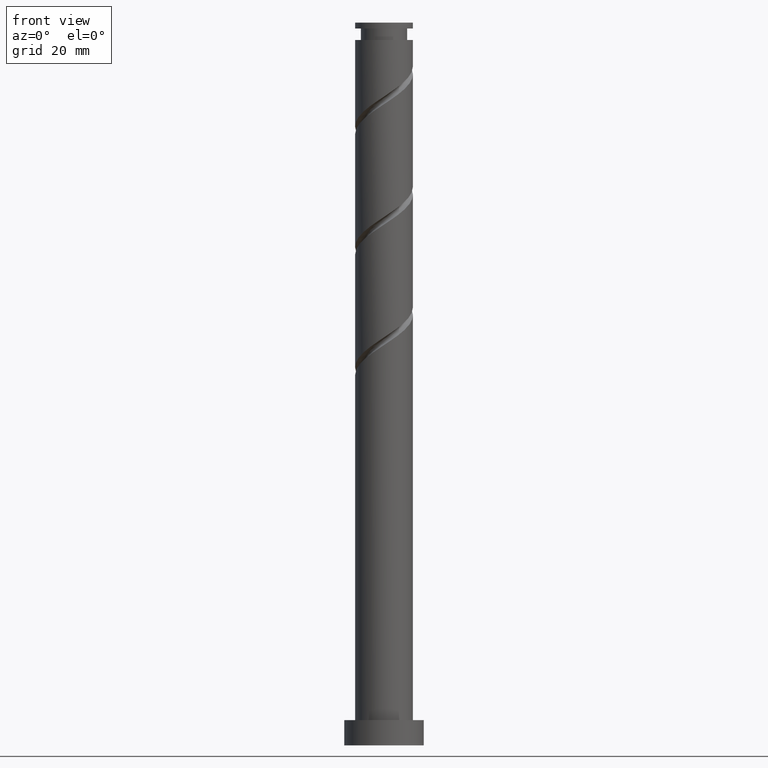
[diagram: clean part render]
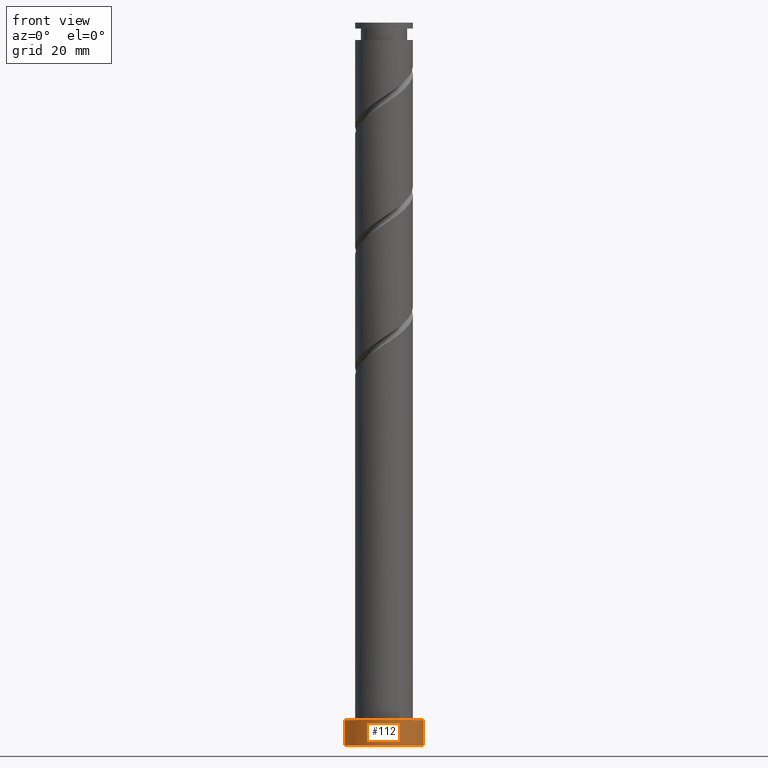
[diagram: same view with one face highlighted and labeled with its STEP entity id]
A machine part, front view. The second image highlights one B-rep face of the part: STEP entity #112.
In plain terms, the highlighted cylindrical surface (partial cylindrical patch) has radius 11 mm, axis along (-0, -0, -1).
Its self-contained STEP definition (entity closure, byte-faithful):
#23 = DIRECTION ( 'NONE',  ( 1.000000000000000000, 0.000000000000000000, 0.000000000000000000 ) ) ;
#36 = EDGE_CURVE ( 'NONE', #113, #643, #524, .T. ) ;
#39 = AXIS2_PLACEMENT_3D ( 'NONE', #546, #1096, #1077 ) ;
#54 = LINE ( 'NONE', #1675, #729 ) ;
#60 = CARTESIAN_POINT ( 'NONE',  ( -11.00000000000000000, 0.000000000000000000, 7.000000000000000000 ) ) ;
#112 = ADVANCED_FACE ( 'NONE', ( #698 ), #966, .T. ) ;
#113 = VERTEX_POINT ( 'NONE', #395 ) ;
#182 = VECTOR ( 'NONE', #357, 1000.000000000000000 ) ;
#253 = VERTEX_POINT ( 'NONE', #60 ) ;
#267 = CARTESIAN_POINT ( 'NONE',  ( 0.000000000000000000, 0.000000000000000000, 0.000000000000000000 ) ) ;
#278 = DIRECTION ( 'NONE',  ( 1.000000000000000000, 0.000000000000000000, 0.000000000000000000 ) ) ;
#297 = EDGE_LOOP ( 'NONE', ( #1285, #1597, #1088, #1497 ) ) ;
#348 = LINE ( 'NONE', #1658, #182 ) ;
#357 = DIRECTION ( 'NONE',  ( -0.000000000000000000, -0.000000000000000000, -1.000000000000000000 ) ) ;
#395 = CARTESIAN_POINT ( 'NONE',  ( -11.00000000000000000, 0.000000000000000000, 0.000000000000000000 ) ) ;
#454 = VERTEX_POINT ( 'NONE', #654 ) ;
#524 = CIRCLE ( 'NONE', #838, 11.00000000000000000 ) ;
#546 = CARTESIAN_POINT ( 'NONE',  ( 0.000000000000000000, 0.000000000000000000, 7.000000000000000000 ) ) ;
#643 = VERTEX_POINT ( 'NONE', #1494 ) ;
#654 = CARTESIAN_POINT ( 'NONE',  ( 11.00000000000000000, 1.347111479062088405E-15, 7.000000000000000000 ) ) ;
#698 = FACE_OUTER_BOUND ( 'NONE', #297, .T. ) ;
#703 = CARTESIAN_POINT ( 'NONE',  ( 0.000000000000000000, 0.000000000000000000, 7.000000000000000000 ) ) ;
#729 = VECTOR ( 'NONE', #1016, 1000.000000000000000 ) ;
#838 = AXIS2_PLACEMENT_3D ( 'NONE', #267, #1498, #278 ) ;
#857 = EDGE_CURVE ( 'NONE', #454, #643, #348, .T. ) ;
#898 = AXIS2_PLACEMENT_3D ( 'NONE', #703, #1247, #23 ) ;
#966 = CYLINDRICAL_SURFACE ( 'NONE', #39, 11.00000000000000000 ) ;
#1016 = DIRECTION ( 'NONE',  ( -0.000000000000000000, -0.000000000000000000, -1.000000000000000000 ) ) ;
#1077 = DIRECTION ( 'NONE',  ( -1.000000000000000000, 0.000000000000000000, 0.000000000000000000 ) ) ;
#1088 = ORIENTED_EDGE ( 'NONE', *, *, #1513, .T. ) ;
#1096 = DIRECTION ( 'NONE',  ( -0.000000000000000000, -0.000000000000000000, -1.000000000000000000 ) ) ;
#1247 = DIRECTION ( 'NONE',  ( 0.000000000000000000, 0.000000000000000000, 1.000000000000000000 ) ) ;
#1252 = EDGE_CURVE ( 'NONE', #253, #454, #1267, .T. ) ;
#1267 = CIRCLE ( 'NONE', #898, 11.00000000000000000 ) ;
#1285 = ORIENTED_EDGE ( 'NONE', *, *, #857, .F. ) ;
#1494 = CARTESIAN_POINT ( 'NONE',  ( 11.00000000000000000, 1.347111479062088405E-15, 0.000000000000000000 ) ) ;
#1497 = ORIENTED_EDGE ( 'NONE', *, *, #36, .T. ) ;
#1498 = DIRECTION ( 'NONE',  ( 0.000000000000000000, 0.000000000000000000, 1.000000000000000000 ) ) ;
#1513 = EDGE_CURVE ( 'NONE', #253, #113, #54, .T. ) ;
#1597 = ORIENTED_EDGE ( 'NONE', *, *, #1252, .F. ) ;
#1658 = CARTESIAN_POINT ( 'NONE',  ( 11.00000000000000000, 1.347111479062088405E-15, 7.000000000000000000 ) ) ;
#1675 = CARTESIAN_POINT ( 'NONE',  ( -11.00000000000000000, 0.000000000000000000, 7.000000000000000000 ) ) ;